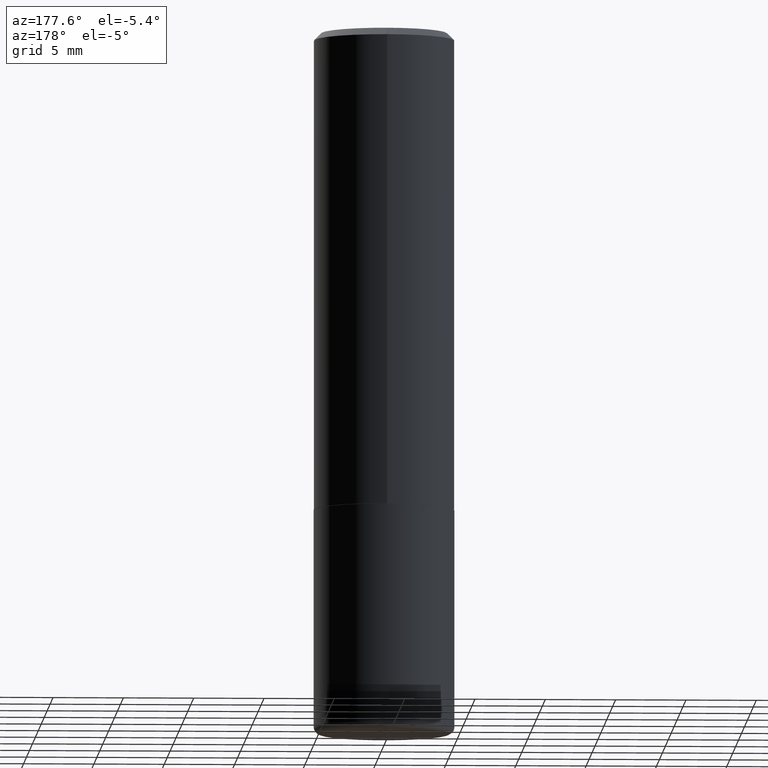
[diagram: clean part render]
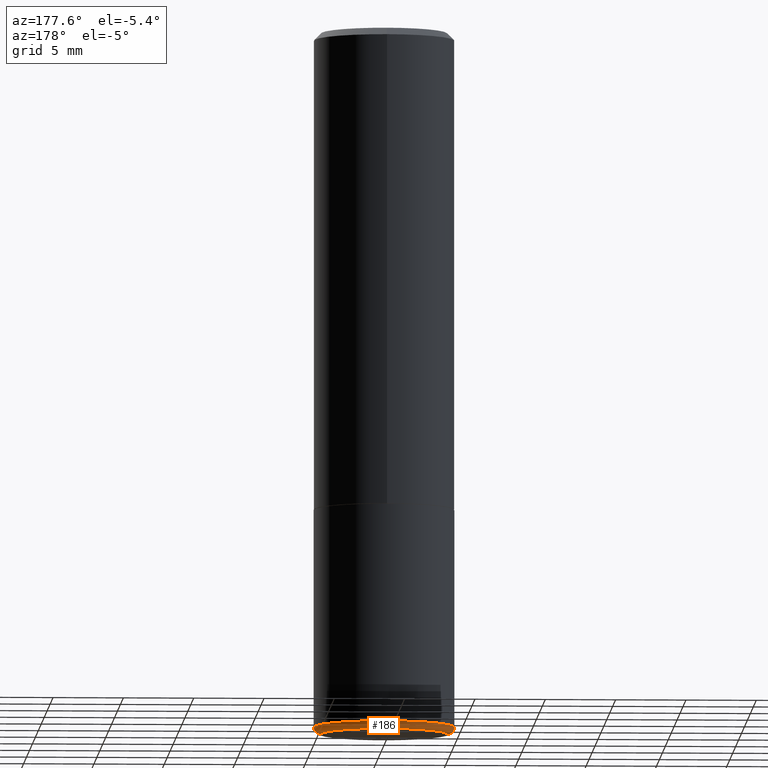
[diagram: same view with one face highlighted and labeled with its STEP entity id]
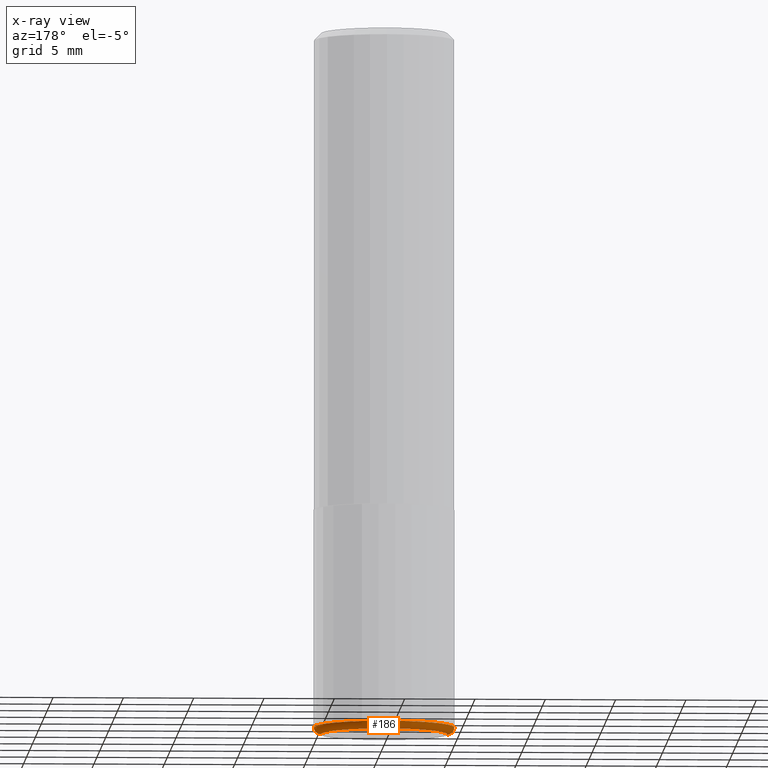
[diagram: x-ray of the same camera — body ghosted, the highlighted face saturated]
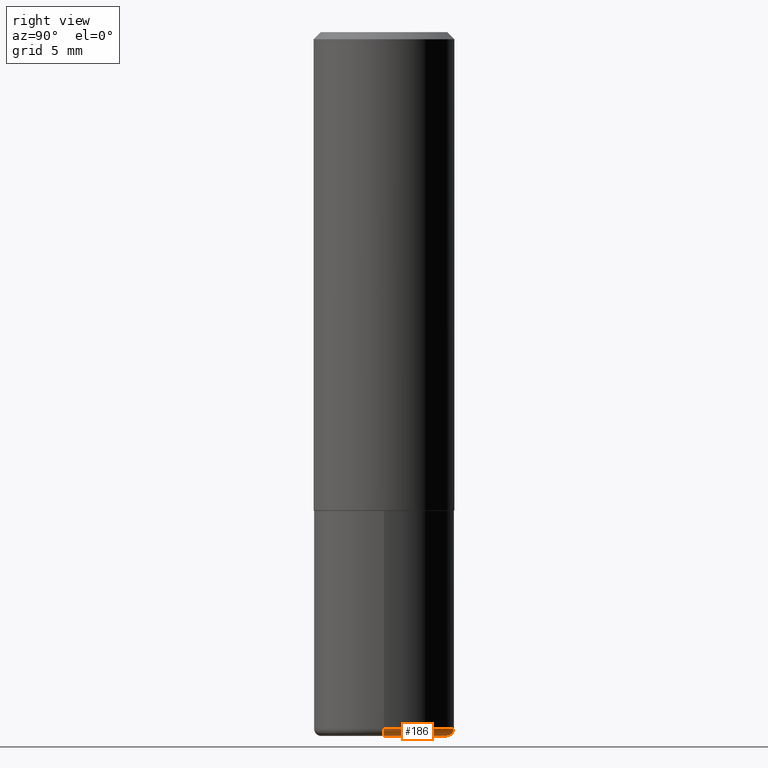
[diagram: same view with one face highlighted and labeled with its STEP entity id]
A machine part, auxiliary view. The second image highlights one B-rep face of the part: STEP entity #186.
The next image is the same camera in x-ray: the body ghosted, the highlighted face saturated — about 0% of this face is hidden behind the body in this view.
A second angle (right view) of the same face is appended — the face is thin or edge-on in the first view.
In plain terms, the highlighted toroidal blend (fillet) surface has major radius 4.4996 mm and minor (blend) radius 0.5004 mm.
Its self-contained STEP definition (entity closure, byte-faithful):
#1 = EDGE_LOOP ( 'NONE', ( #102, #203, #369, #12 ) ) ;
#9 = AXIS2_PLACEMENT_3D ( 'NONE', #133, #365, #13 ) ;
#12 = ORIENTED_EDGE ( 'NONE', *, *, #190, .F. ) ;
#13 = DIRECTION ( 'NONE',  ( -1.000000000000000000, 7.105427357601014480E-15, 0.000000000000000000 ) ) ;
#20 = CARTESIAN_POINT ( 'NONE',  ( 4.765729609493594537E-29, -6.804198833137522100E-15, -1.948800000000000088 ) ) ;
#30 = DIRECTION ( 'NONE',  ( -2.445468806185136597E-29, 3.491481338843145583E-15, 1.000000000000000000 ) ) ;
#53 = EDGE_CURVE ( 'NONE', #156, #298, #73, .T. ) ;
#73 = CIRCLE ( 'NONE', #269, 0.1771499999999999742 ) ;
#102 = ORIENTED_EDGE ( 'NONE', *, *, #53, .T. ) ;
#131 = CIRCLE ( 'NONE', #9, 0.01970000000000002999 ) ;
#133 = CARTESIAN_POINT ( 'NONE',  ( -0.1771500000000000019, -5.545472376738503621E-15, -1.948800000000000088 ) ) ;
#144 = CARTESIAN_POINT ( 'NONE',  ( 0.1771500000000000019, -8.041230671489644494E-15, -1.948800000000000088 ) ) ;
#156 = VERTEX_POINT ( 'NONE', #261 ) ;
#167 = FACE_OUTER_BOUND ( 'NONE', #1, .T. ) ;
#172 = AXIS2_PLACEMENT_3D ( 'NONE', #144, #378, #174 ) ;
#174 = DIRECTION ( 'NONE',  ( 1.000000000000000000, -6.982962677686267499E-15, 0.000000000000000000 ) ) ;
#176 = CARTESIAN_POINT ( 'NONE',  ( -0.1968500000000000527, -5.405495457793762735E-15, -1.948799999999999644 ) ) ;
#186 = ADVANCED_FACE ( 'NONE', ( #167 ), #388, .T. ) ;
#190 = EDGE_CURVE ( 'NONE', #156, #401, #363, .T. ) ;
#194 = CIRCLE ( 'NONE', #394, 0.1968500000000000527 ) ;
#203 = ORIENTED_EDGE ( 'NONE', *, *, #322, .T. ) ;
#206 = CARTESIAN_POINT ( 'NONE',  ( 0.1968500000000000527, -8.178795036240062131E-15, -1.948799999999999644 ) ) ;
#208 = VERTEX_POINT ( 'NONE', #176 ) ;
#246 = DIRECTION ( 'NONE',  ( -2.445468806185136597E-29, 3.491481338843145583E-15, 1.000000000000000000 ) ) ;
#261 = CARTESIAN_POINT ( 'NONE',  ( 0.1771499999999999742, -8.110012853864854101E-15, -1.968500000000000139 ) ) ;
#266 = DIRECTION ( 'NONE',  ( -2.445468806185136597E-29, 3.491481338843145583E-15, 1.000000000000000000 ) ) ;
#269 = AXIS2_PLACEMENT_3D ( 'NONE', #361, #266, #366 ) ;
#282 = DIRECTION ( 'NONE',  ( 1.000000000000000000, -6.982962677686266711E-15, 0.000000000000000000 ) ) ;
#292 = EDGE_CURVE ( 'NONE', #401, #208, #194, .T. ) ;
#298 = VERTEX_POINT ( 'NONE', #408 ) ;
#315 = DIRECTION ( 'NONE',  ( 1.000000000000000000, -6.982962677686266711E-15, 4.883557194083112340E-29 ) ) ;
#322 = EDGE_CURVE ( 'NONE', #298, #208, #131, .T. ) ;
#353 = AXIS2_PLACEMENT_3D ( 'NONE', #20, #246, #315 ) ;
#361 = CARTESIAN_POINT ( 'NONE',  ( 4.813905344975441835E-29, -6.872981015512731707E-15, -1.968500000000000139 ) ) ;
#363 = CIRCLE ( 'NONE', #172, 0.01970000000000002999 ) ;
#365 = DIRECTION ( 'NONE',  ( 7.105427357601001859E-15, 1.000000000000000000, -3.491481338843145583E-15 ) ) ;
#366 = DIRECTION ( 'NONE',  ( 1.000000000000000000, -6.982962677686268288E-15, 0.000000000000000000 ) ) ;
#369 = ORIENTED_EDGE ( 'NONE', *, *, #292, .F. ) ;
#378 = DIRECTION ( 'NONE',  ( -6.982962677686266711E-15, -1.000000000000000000, 3.491481338843145583E-15 ) ) ;
#388 = TOROIDAL_SURFACE ( 'NONE', #353, 0.1771500000000000019, 0.01970000000000004733 ) ;
#394 = AXIS2_PLACEMENT_3D ( 'NONE', #413, #30, #282 ) ;
#401 = VERTEX_POINT ( 'NONE', #206 ) ;
#408 = CARTESIAN_POINT ( 'NONE',  ( -0.1771499999999999742, -5.509875008453739165E-15, -1.968500000000000139 ) ) ;
#413 = CARTESIAN_POINT ( 'NONE',  ( 4.765729609493593976E-29, -6.804198833137520522E-15, -1.948799999999999644 ) ) ;